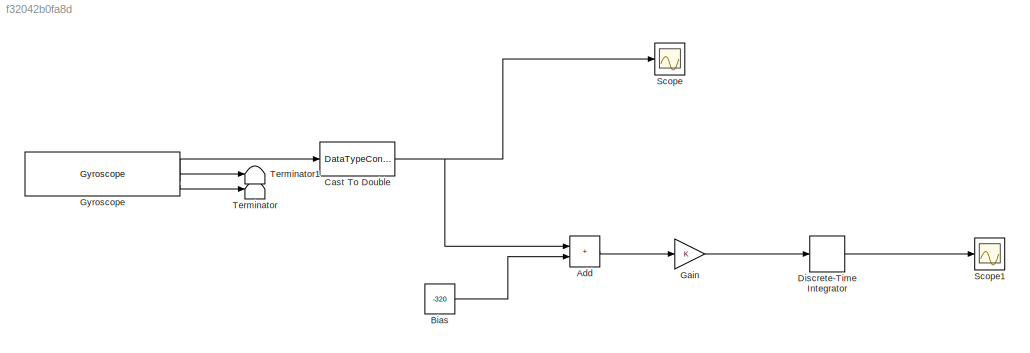
MODEL slx_f32042b0fa8d
KIND model
CONFIG AbsTol = auto
CONFIG EnableMultiTasking = off
CONFIG FixedStep = auto
CONFIG MaxStep = auto
CONFIG MinStep = auto
CONFIG RelTol = 1e-3
CONFIG SampleTimeConstraint = Unconstrained
CONFIG SolverName = FixedStepAuto
CONFIG StartTime = 0.0
CONFIG StopTime = 10.0
BLOCK [Sum] Add
  IconShape = rectangular
BLOCK [Constant] Bias
  Value = -320
BLOCK [DataTypeConversion] Cast To Double
  OutDataTypeStr = double
  RndMeth = Floor
  SaturateOnIntegerOverflow = off
BLOCK [DiscreteIntegrator] Discrete-Time Integrator
  ICPrevOutput = DiscIntNeverNeededParam
  ICPrevScaledInput = DiscIntNeverNeededParam
  InitialConditionSetting = Auto
  SampleTime = -1
BLOCK [Gain] Gain
BLOCK [Reference] Gyroscope  REF=RASPlib/Gyroscope
  SourceBlock = RASPlib/Gyroscope
  SourceProductName = Rensselaer Arduino Support Package
  SourceType = soMPU6050Gyro
BLOCK [Scope] Scope
  Floating = off
  NumInputPorts = 1
  ScopeSpecificationString = Simulink.scopes.TimeScopeBlockCfg('CurrentConfiguration', extmgr.ConfigurationSet(extmgr.Configuration('Core','General UI',true),extmgr.Configuration('Core','Source UI',true),extmgr.Configuration('Sources','WiredSimulink',true),extmgr.Configuration('Visuals','Time Domain',true,'SerializedDisplays',{struct('MinYLimReal','-8421.75','MaxYLimReal','8655.75','YLabelReal','','MinYLimMag','  0.00000','Ma...<+1367ch>
BLOCK [Scope] Scope1
  Floating = off
  NumInputPorts = 1
  ScopeSpecificationString = Simulink.scopes.TimeScopeBlockCfg('CurrentConfiguration', extmgr.ConfigurationSet(extmgr.Configuration('Core','General UI',true),extmgr.Configuration('Core','Source UI',true),extmgr.Configuration('Sources','WiredSimulink',true,'DataLoggingVariableName','ScopeData1'),extmgr.Configuration('Visuals','Time Domain',true,'SerializedDisplays',{struct('MinYLimReal','-11936.02478','MaxYLimReal','1326.22498...<+1440ch>
BLOCK [Terminator] Terminator
BLOCK [Terminator] Terminator1
LINE Add:1 -> Gain:1
LINE Bias:1 -> Add:2
NET Cast To Double:1 -> Add:1, Scope:1
LINE Discrete-Time Integrator:1 -> Scope1:1
LINE Gain:1 -> Discrete-Time Integrator:1
LINE Gyroscope:1 -> Cast To Double:1
LINE Gyroscope:2 -> Terminator1:1
LINE Gyroscope:3 -> Terminator:1
note: NET lines group one-source signal fan-out (src -> all destinations, sorted); 1:1 wires keep LINE
